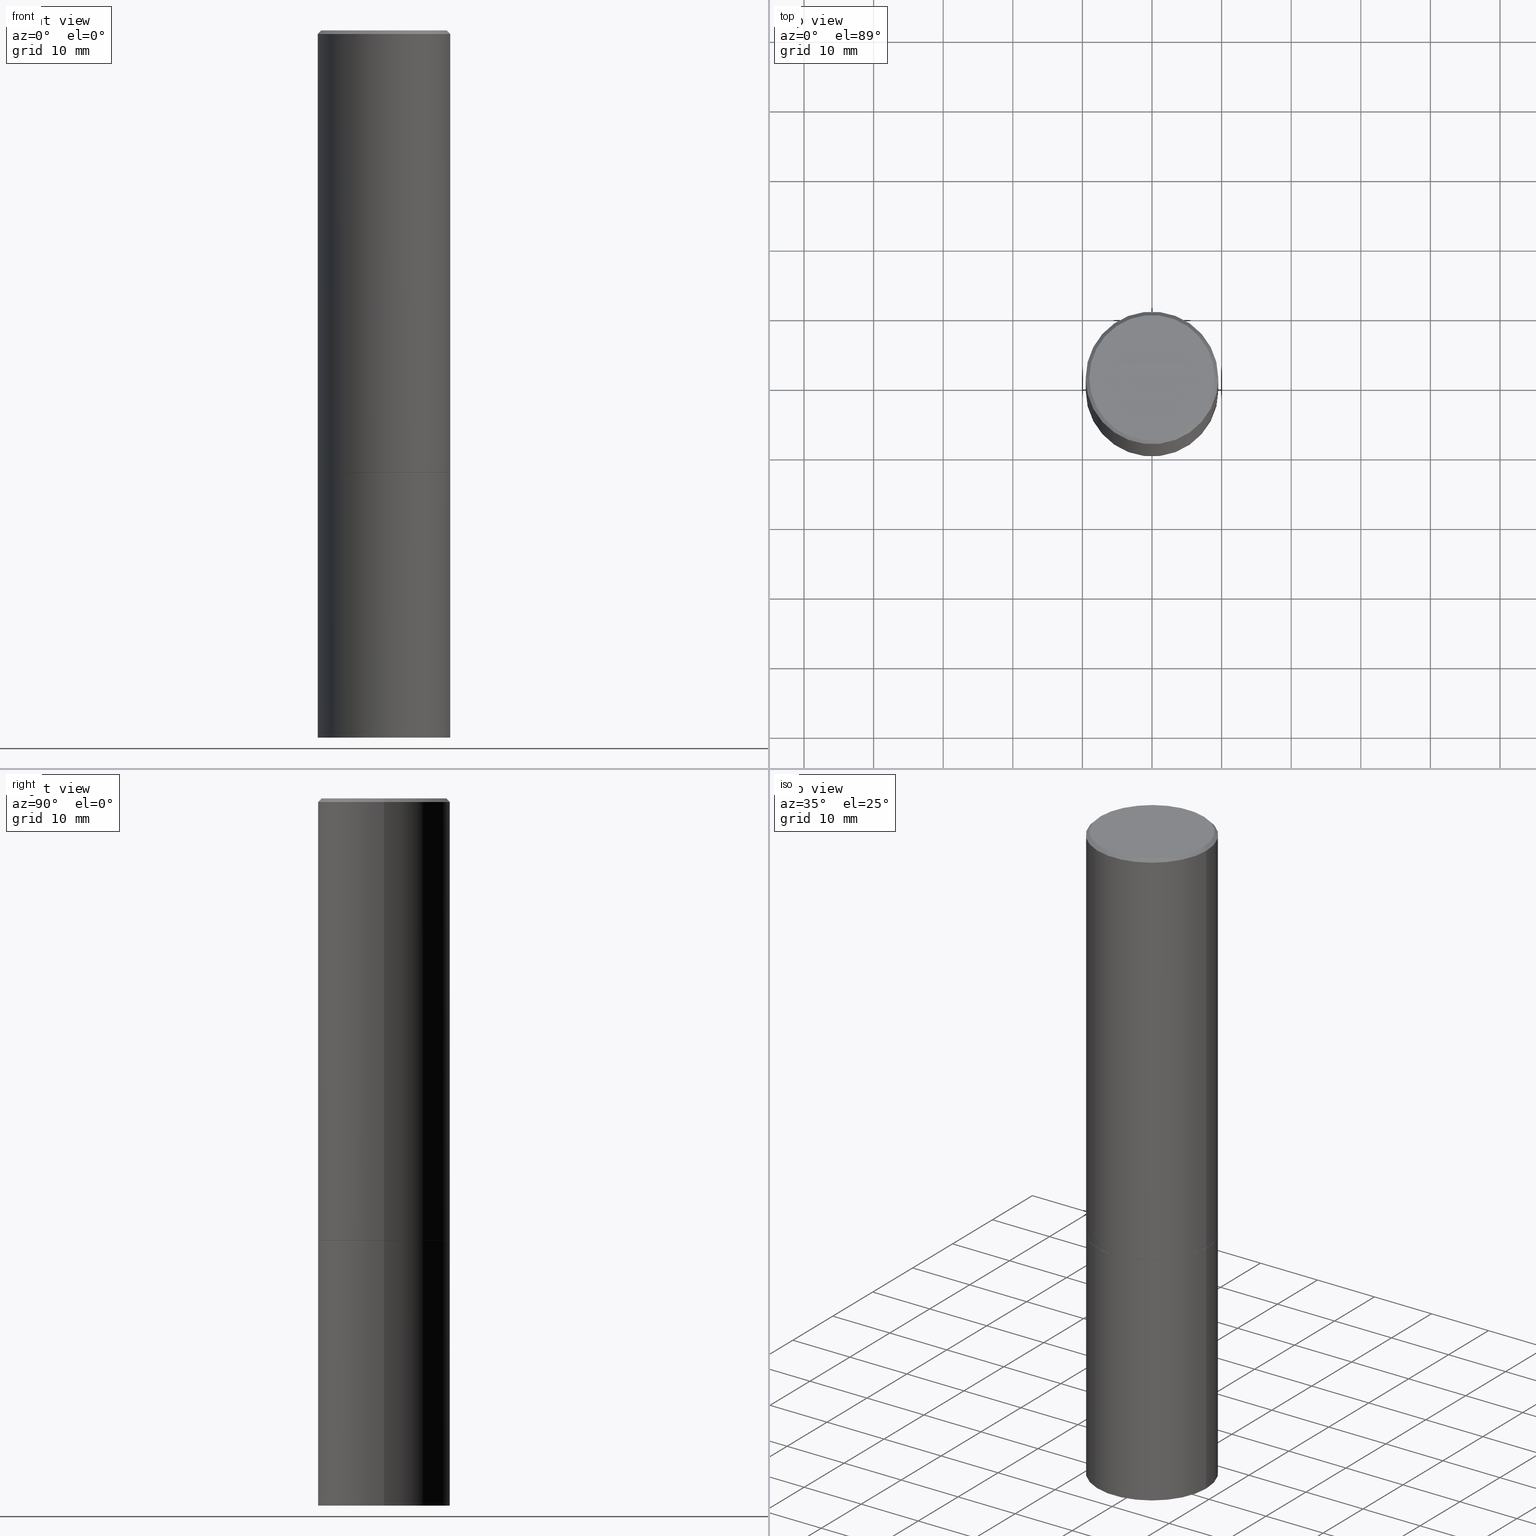
[diagram: canonical four-view strip — front | top / right | iso, engineering-drawing reading convention]
A machine part, canonical four-view strip (front | top / right | iso — engineering-drawing reading convention). The complete STEP part file that produces these views, byte-faithful:
ISO-10303-21;
HEADER;
FILE_DESCRIPTION (( 'STEP AP203' ),
    '1' );
FILE_NAME ('36537.STEP',
    '2024-02-27T19:36:53',
    ( '' ),
    ( '' ),
    'SwSTEP 2.0',
    'SolidWorks 2023',
    '' );
FILE_SCHEMA (( 'CONFIG_CONTROL_DESIGN' ));
ENDSEC;

DATA;
#1 = APPROVAL_ROLE ( '' ) ;
#2 = APPLICATION_PROTOCOL_DEFINITION ( 'international standard', 'config_control_design', 1994, #136 ) ;
#3 = CIRCLE ( 'NONE', #176, 0.3750000000000000555 ) ;
#4 = CARTESIAN_POINT ( 'NONE',  ( -0.3749999999999999445, -1.732985487172566723E-15, -2.499000000000000998 ) ) ;
#5 = PERSON_AND_ORGANIZATION_ROLE ( 'design_supplier' ) ;
#6 = ORIENTED_EDGE ( 'NONE', *, *, #203, .T. ) ;
#7 = DIRECTION ( 'NONE',  ( -2.445468806185136597E-29, 3.491481338843145583E-15, 1.000000000000000000 ) ) ;
#8 = ORIENTED_EDGE ( 'NONE', *, *, #340, .F. ) ;
#9 = EDGE_CURVE ( 'NONE', #67, #296, #132, .T. ) ;
#10 = ORIENTED_EDGE ( 'NONE', *, *, #171, .T. ) ;
#11 = CARTESIAN_POINT ( 'NONE',  ( 2.618611004132411153E-15, 0.3749999999999912847, -2.500000000000001332 ) ) ;
#12 = UNCERTAINTY_MEASURE_WITH_UNIT (LENGTH_MEASURE( 1.000000000000000082E-05 ), #361, 'distance_accuracy_value', 'NONE');
#13 = ORIENTED_EDGE ( 'NONE', *, *, #106, .F. ) ;
#14 = CARTESIAN_POINT ( 'NONE',  ( 0.3549999999999996492, -2.538996582575038287E-15, 4.268512490117958041E-18 ) ) ;
#15 = VECTOR ( 'NONE', #269, 39.37007874015748143 ) ;
#16 = EDGE_CURVE ( 'NONE', #89, #67, #142, .T. ) ;
#17 = CARTESIAN_POINT ( 'NONE',  ( 0.3750000000000000555, -2.618611004132350016E-15, 1.828566290923476203E-29 ) ) ;
#18 = DIRECTION ( 'NONE',  ( 1.000000000000000000, -6.982962677686268288E-15, 0.000000000000000000 ) ) ;
#19 = FACE_OUTER_BOUND ( 'NONE', #274, .T. ) ;
#20 = AXIS2_PLACEMENT_3D ( 'NONE', #259, #70, #155 ) ;
#21 = APPROVAL_PERSON_ORGANIZATION ( #307, #78, #1 ) ;
#22 = DIRECTION ( 'NONE',  ( -2.445468806185136597E-29, 3.491481338843145583E-15, 1.000000000000000000 ) ) ;
#23 = APPROVAL ( #208, 'UNSPECIFIED' ) ;
#24 = EDGE_LOOP ( 'NONE', ( #8, #355, #74, #41 ) ) ;
#25 = DESIGN_CONTEXT ( 'detailed design', #136, 'design' ) ;
#26 = ADVANCED_FACE ( 'NONE', ( #207 ), #279, .F. ) ;
#27 = AXIS2_PLACEMENT_3D ( 'NONE', #104, #159, #158 ) ;
#28 = DIRECTION ( 'NONE',  ( -2.445468806185136597E-29, 3.491481338843145583E-15, 1.000000000000000000 ) ) ;
#29 = CALENDAR_DATE ( 2024, 27, 2 ) ;
#30 = DIRECTION ( 'NONE',  ( 1.000000000000000000, -6.982962677686266711E-15, 0.000000000000000000 ) ) ;
#31 = PERSON_AND_ORGANIZATION ( #197, #348 ) ;
#32 = AXIS2_PLACEMENT_3D ( 'NONE', #140, #49, #365 ) ;
#33 = DIRECTION ( 'NONE',  ( -0.7071067811868130271, 7.493145998871311837E-15, 0.7071067811862817853 ) ) ;
#34 = DIRECTION ( 'NONE',  ( -2.445468806185136597E-29, 3.491481338843145583E-15, 1.000000000000000000 ) ) ;
#35 = EDGE_LOOP ( 'NONE', ( #262, #91 ) ) ;
#36 = VERTEX_POINT ( 'NONE', #204 ) ;
#37 = CIRCLE ( 'NONE', #226, 0.3750000000000000555 ) ;
#38 = VERTEX_POINT ( 'NONE', #202 ) ;
#39 = DIRECTION ( 'NONE',  ( -1.000000000000000000, 6.982962677686266711E-15, 0.000000000000000000 ) ) ;
#40 = ORIENTED_EDGE ( 'NONE', *, *, #329, .F. ) ;
#41 = ORIENTED_EDGE ( 'NONE', *, *, #59, .F. ) ;
#42 = ADVANCED_FACE ( 'NONE', ( #53 ), #169, .T. ) ;
#43 = DIRECTION ( 'NONE',  ( -2.445468806185136877E-29, 3.491481338843145188E-15, 1.000000000000000000 ) ) ;
#44 = APPROVAL_PERSON_ORGANIZATION ( #180, #23, #287 ) ;
#45 = MECHANICAL_CONTEXT ( 'NONE', #92, 'mechanical' ) ;
#46 = ORIENTED_EDGE ( 'NONE', *, *, #106, .T. ) ;
#47 = CARTESIAN_POINT ( 'NONE',  ( 6.113672015462842613E-29, -8.728703347107864943E-15, -2.500000000000000000 ) ) ;
#48 = CC_DESIGN_PERSON_AND_ORGANIZATION_ASSIGNMENT ( #145, #5, ( #266 ) ) ;
#49 = DIRECTION ( 'NONE',  ( -2.438088387897960049E-29, 3.491481338843145188E-15, 1.000000000000000000 ) ) ;
#50 = DIRECTION ( 'NONE',  ( -2.445468806185136597E-29, 3.491481338843145583E-15, 1.000000000000000000 ) ) ;
#51 = CARTESIAN_POINT ( 'NONE',  ( 6.113672015462842613E-29, -8.728703347107864943E-15, -2.500000000000000000 ) ) ;
#52 = EDGE_CURVE ( 'NONE', #36, #72, #3, .T. ) ;
#53 = FACE_OUTER_BOUND ( 'NONE', #247, .T. ) ;
#54 = PRODUCT_RELATED_PRODUCT_CATEGORY ( 'detail', '', ( #179 ) ) ;
#55 = AXIS2_PLACEMENT_3D ( 'NONE', #256, #34, #351 ) ;
#56 = SHAPE_DEFINITION_REPRESENTATION ( #90, #124 ) ;
#57 = CIRCLE ( 'NONE', #107, 0.3749999999999996669 ) ;
#58 = COORDINATED_UNIVERSAL_TIME_OFFSET ( 5, 0, .BEHIND. ) ;
#59 = EDGE_CURVE ( 'NONE', #264, #149, #61, .T. ) ;
#60 = APPROVAL_ROLE ( '' ) ;
#61 = CIRCLE ( 'NONE', #363, 0.3750000000000000555 ) ;
#62 = PLANE ( 'NONE',  #69 ) ;
#63 = LOCAL_TIME ( 14, 36, 53.00000000000000000, #255 ) ;
#64 = ORIENTED_EDGE ( 'NONE', *, *, #270, .F. ) ;
#65 = CALENDAR_DATE ( 2024, 27, 2 ) ;
#66 = DIRECTION ( 'NONE',  ( 2.438088387897960049E-29, -3.491481338843145188E-15, -1.000000000000000000 ) ) ;
#67 = VERTEX_POINT ( 'NONE', #4 ) ;
#68 = ORIENTED_EDGE ( 'NONE', *, *, #329, .T. ) ;
#69 = AXIS2_PLACEMENT_3D ( 'NONE', #11, #123, #120 ) ;
#70 = DIRECTION ( 'NONE',  ( -2.445468806185136597E-29, 3.491481338843145583E-15, 1.000000000000000000 ) ) ;
#71 = VECTOR ( 'NONE', #146, 39.37007874015748854 ) ;
#72 = VERTEX_POINT ( 'NONE', #253 ) ;
#73 = DIRECTION ( 'NONE',  ( -2.445468806185136597E-29, 3.491481338843145583E-15, 1.000000000000000000 ) ) ;
#74 = ORIENTED_EDGE ( 'NONE', *, *, #270, .T. ) ;
#75 = DIRECTION ( 'NONE',  ( -2.445468806185136597E-29, 3.491481338843145583E-15, 1.000000000000000000 ) ) ;
#76 = EDGE_CURVE ( 'NONE', #89, #189, #317, .T. ) ;
#77 = DIRECTION ( 'NONE',  ( 1.000000000000000000, -6.982962677686266711E-15, 0.000000000000000000 ) ) ;
#78 = APPROVAL ( #302, 'UNSPECIFIED' ) ;
#79 = DIRECTION ( 'NONE',  ( 1.000000000000000000, -6.982962677686266711E-15, 0.000000000000000000 ) ) ;
#80 = ADVANCED_FACE ( 'NONE', ( #276 ), #185, .T. ) ;
#81 = DIRECTION ( 'NONE',  ( -2.445468806185136597E-29, 3.491481338843145583E-15, 1.000000000000000000 ) ) ;
#82 = DATE_AND_TIME ( #345, #166 ) ;
#83 = CARTESIAN_POINT ( 'NONE',  ( 2.478951750578621842E-15, 0.3549999999999996492, -1.237341619044265047E-15 ) ) ;
#84 = AXIS2_PLACEMENT_3D ( 'NONE', #83, #147, #117 ) ;
#85 = DIRECTION ( 'NONE',  ( -2.445468806185136877E-29, 3.491481338843145188E-15, 1.000000000000000000 ) ) ;
#86 = PERSON_AND_ORGANIZATION ( #197, #348 ) ;
#87 = AXIS2_PLACEMENT_3D ( 'NONE', #311, #278, #217 ) ;
#88 = CC_DESIGN_SECURITY_CLASSIFICATION ( #112, ( #266 ) ) ;
#89 = VERTEX_POINT ( 'NONE', #94 ) ;
#90 = PRODUCT_DEFINITION_SHAPE ( 'NONE', 'NONE',  #134 ) ;
#91 = ORIENTED_EDGE ( 'NONE', *, *, #258, .F. ) ;
#92 = APPLICATION_CONTEXT ( 'configuration controlled 3d designs of mechanical parts and assemblies' ) ;
#93 = FACE_OUTER_BOUND ( 'NONE', #325, .T. ) ;
#94 = CARTESIAN_POINT ( 'NONE',  ( -0.3739999999999999991, -6.065975061016868641E-15, -2.500000000000000000 ) ) ;
#95 = ORIENTED_EDGE ( 'NONE', *, *, #9, .T. ) ;
#96 = DIRECTION ( 'NONE',  ( -1.000000000000000000, 6.982962677686265922E-15, -4.876176775795935793E-29 ) ) ;
#97 = AXIS2_PLACEMENT_3D ( 'NONE', #111, #28, #174 ) ;
#98 = CIRCLE ( 'NONE', #138, 0.3750000000000000555 ) ;
#99 = ORIENTED_EDGE ( 'NONE', *, *, #295, .T. ) ;
#100 = EDGE_CURVE ( 'NONE', #129, #215, #214, .T. ) ;
#101 = LINE ( 'NONE', #330, #152 ) ;
#102 = CARTESIAN_POINT ( 'NONE',  ( 0.000000000000000000, 0.000000000000000000, 0.000000000000000000 ) ) ;
#103 = ORIENTED_EDGE ( 'NONE', *, *, #265, .F. ) ;
#104 = CARTESIAN_POINT ( 'NONE',  ( 0.000000000000000000, 0.000000000000000000, 0.000000000000000000 ) ) ;
#105 = DIRECTION ( 'NONE',  ( 1.000000000000000000, -6.982962677686264344E-15, 0.000000000000000000 ) ) ;
#106 = EDGE_CURVE ( 'NONE', #338, #129, #352, .T. ) ;
#107 = AXIS2_PLACEMENT_3D ( 'NONE', #163, #139, #79 ) ;
#108 = CARTESIAN_POINT ( 'NONE',  ( 9.781875224740546387E-29, -1.396592535537258233E-14, -4.000000000000000000 ) ) ;
#109 = LINE ( 'NONE', #165, #15 ) ;
#110 = ADVANCED_FACE ( 'NONE', ( #19 ), #164, .F. ) ;
#111 = CARTESIAN_POINT ( 'NONE',  ( 0.000000000000000000, 0.000000000000000000, 0.000000000000000000 ) ) ;
#112 = SECURITY_CLASSIFICATION ( '', '', #229 ) ;
#113 = CARTESIAN_POINT ( 'NONE',  ( -0.3739999999999999991, -6.071273515365089465E-15, -2.500000000000000000 ) ) ;
#114 = CC_DESIGN_PERSON_AND_ORGANIZATION_ASSIGNMENT ( #86, #173, ( #266 ) ) ;
#115 = AXIS2_PLACEMENT_3D ( 'NONE', #292, #183, #39 ) ;
#116 = AXIS2_PLACEMENT_3D ( 'NONE', #364, #336, #223 ) ;
#117 = DIRECTION ( 'NONE',  ( -1.000000000000000000, 6.982962677686265922E-15, -4.876176775795935793E-29 ) ) ;
#118 = CALENDAR_DATE ( 2024, 27, 2 ) ;
#119 = ADVANCED_FACE ( 'NONE', ( #224 ), #238, .T. ) ;
#120 = DIRECTION ( 'NONE',  ( -1.000000000000000000, 6.982962677686265922E-15, -4.876176775795935793E-29 ) ) ;
#121 = EDGE_LOOP ( 'NONE', ( #240, #13, #10, #257 ) ) ;
#122 = AXIS2_PLACEMENT_3D ( 'NONE', #102, #75, #342 ) ;
#123 = DIRECTION ( 'NONE',  ( 2.438088387897960049E-29, -3.491481338843145188E-15, -1.000000000000000000 ) ) ;
#124 = ADVANCED_BREP_SHAPE_REPRESENTATION ( '36537', ( #308, #323, #27 ), #305 ) ;
#125 = ORIENTED_EDGE ( 'NONE', *, *, #316, .T. ) ;
#126 = DIRECTION ( 'NONE',  ( 1.000000000000000000, -6.982962677686266711E-15, 0.000000000000000000 ) ) ;
#127 = ORIENTED_EDGE ( 'NONE', *, *, #265, .T. ) ;
#128 = FACE_OUTER_BOUND ( 'NONE', #35, .T. ) ;
#129 = VERTEX_POINT ( 'NONE', #14 ) ;
#130 = ORIENTED_EDGE ( 'NONE', *, *, #300, .T. ) ;
#131 = LINE ( 'NONE', #17, #200 ) ;
#132 = LINE ( 'NONE', #299, #137 ) ;
#133 = CARTESIAN_POINT ( 'NONE',  ( 6.113672015462842613E-29, -8.728703347107864943E-15, -2.500000000000000000 ) ) ;
#134 = PRODUCT_DEFINITION ( 'UNKNOWN', '', #266, #25 ) ;
#135 = PERSON_AND_ORGANIZATION ( #197, #348 ) ;
#136 = APPLICATION_CONTEXT ( 'configuration controlled 3d designs of mechanical parts and assemblies' ) ;
#137 = VECTOR ( 'NONE', #85, 39.37007874015748143 ) ;
#138 = AXIS2_PLACEMENT_3D ( 'NONE', #108, #221, #77 ) ;
#139 = DIRECTION ( 'NONE',  ( -2.445468806185136597E-29, 3.491481338843145583E-15, 1.000000000000000000 ) ) ;
#140 = CARTESIAN_POINT ( 'NONE',  ( 6.113672015462842613E-29, -8.728703347107864943E-15, -2.500000000000000000 ) ) ;
#141 = ORIENTED_EDGE ( 'NONE', *, *, #52, .T. ) ;
#142 = LINE ( 'NONE', #113, #281 ) ;
#143 = CC_DESIGN_PERSON_AND_ORGANIZATION_ASSIGNMENT ( #193, #206, ( #134 ) ) ;
#144 = DIRECTION ( 'NONE',  ( 1.000000000000000000, -6.982962677686264344E-15, 0.000000000000000000 ) ) ;
#145 = PERSON_AND_ORGANIZATION ( #197, #348 ) ;
#146 = DIRECTION ( 'NONE',  ( 0.7071067811868130271, -2.468850131085038979E-15, 0.7071067811862817853 ) ) ;
#147 = DIRECTION ( 'NONE',  ( 2.438088387897960049E-29, -3.491481338843145188E-15, -1.000000000000000000 ) ) ;
#148 = ADVANCED_FACE ( 'NONE', ( #333 ), #358, .T. ) ;
#149 = VERTEX_POINT ( 'NONE', #172 ) ;
#150 = CARTESIAN_POINT ( 'NONE',  ( 0.000000000000000000, 0.000000000000000000, 0.000000000000000000 ) ) ;
#151 = EDGE_LOOP ( 'NONE', ( #212, #332, #235, #261 ) ) ;
#152 = VECTOR ( 'NONE', #43, 39.37007874015748143 ) ;
#153 = ORIENTED_EDGE ( 'NONE', *, *, #171, .F. ) ;
#154 = CARTESIAN_POINT ( 'NONE',  ( 0.3749999999999996669, -2.642516375941185662E-15, -0.02000000000000007674 ) ) ;
#155 = DIRECTION ( 'NONE',  ( 1.000000000000000000, -6.982962677686265922E-15, 4.876231632511992667E-29 ) ) ;
#156 = CC_DESIGN_DATE_AND_TIME_ASSIGNMENT ( #314, #349, ( #112 ) ) ;
#157 = ORIENTED_EDGE ( 'NONE', *, *, #203, .F. ) ;
#158 = DIRECTION ( 'NONE',  ( 1.000000000000000000, 0.000000000000000000, 0.000000000000000000 ) ) ;
#159 = DIRECTION ( 'NONE',  ( 0.000000000000000000, 0.000000000000000000, 1.000000000000000000 ) ) ;
#160 = AXIS2_PLACEMENT_3D ( 'NONE', #51, #250, #167 ) ;
#161 = LOCAL_TIME ( 14, 36, 53.00000000000000000, #324 ) ;
#162 = APPROVAL_STATUS ( 'not_yet_approved' ) ;
#163 = CARTESIAN_POINT ( 'NONE',  ( 4.890937612370292426E-31, -6.982962677686317493E-17, -0.02000000000000007674 ) ) ;
#164 = PLANE ( 'NONE',  #32 ) ;
#165 = CARTESIAN_POINT ( 'NONE',  ( 0.3749999999999998335, -2.618611004132348439E-15, 1.828566290923475082E-29 ) ) ;
#166 = LOCAL_TIME ( 14, 36, 53.00000000000000000, #227 ) ;
#167 = DIRECTION ( 'NONE',  ( 1.000000000000000000, -6.982962677686268288E-15, 0.000000000000000000 ) ) ;
#168 = CARTESIAN_POINT ( 'NONE',  ( 0.3739999999999999991, -1.134033138856252894E-14, -2.500000000000000000 ) ) ;
#169 = CYLINDRICAL_SURFACE ( 'NONE', #97, 0.3749999999999998335 ) ;
#170 = CIRCLE ( 'NONE', #304, 0.3749999999999996669 ) ;
#171 = EDGE_CURVE ( 'NONE', #338, #296, #344, .T. ) ;
#172 = CARTESIAN_POINT ( 'NONE',  ( 0.3750000000000000555, -1.134731435124021338E-14, -2.500000000000000000 ) ) ;
#173 = PERSON_AND_ORGANIZATION_ROLE ( 'creator' ) ;
#174 = DIRECTION ( 'NONE',  ( 1.000000000000000000, -6.982962677686265922E-15, 4.876176775795935793E-29 ) ) ;
#175 = CARTESIAN_POINT ( 'NONE',  ( 0.3739999999999999991, -1.134033138856252894E-14, -2.500000000000000000 ) ) ;
#176 = AXIS2_PLACEMENT_3D ( 'NONE', #225, #312, #30 ) ;
#177 = AXIS2_PLACEMENT_3D ( 'NONE', #231, #284, #211 ) ;
#178 = EDGE_LOOP ( 'NONE', ( #130, #326 ) ) ;
#179 = PRODUCT ( '36537', '36537', '', ( #45 ) ) ;
#180 = PERSON_AND_ORGANIZATION ( #197, #348 ) ;
#181 = FACE_OUTER_BOUND ( 'NONE', #237, .T. ) ;
#182 = ORIENTED_EDGE ( 'NONE', *, *, #199, .F. ) ;
#183 = DIRECTION ( 'NONE',  ( 2.445468806185136597E-29, -3.491481338843145583E-15, -1.000000000000000000 ) ) ;
#184 = ORIENTED_EDGE ( 'NONE', *, *, #16, .T. ) ;
#185 = CONICAL_SURFACE ( 'NONE', #87, 0.3749999999999996669, 0.7853981633974477239 ) ;
#186 = CC_DESIGN_DATE_AND_TIME_ASSIGNMENT ( #334, #201, ( #134 ) ) ;
#187 = APPROVAL_PERSON_ORGANIZATION ( #31, #213, #60 ) ;
#188 =( LENGTH_UNIT ( ) NAMED_UNIT ( * ) SI_UNIT ( $, .METRE. ) );
#189 = VERTEX_POINT ( 'NONE', #168 ) ;
#190 = LENGTH_MEASURE_WITH_UNIT ( LENGTH_MEASURE( 0.02539999999999999897 ), #188 );
#191 = ORIENTED_EDGE ( 'NONE', *, *, #76, .F. ) ;
#192 = CARTESIAN_POINT ( 'NONE',  ( 6.111226546656659252E-29, -8.725211865769023513E-15, -2.499000000000000998 ) ) ;
#193 = PERSON_AND_ORGANIZATION ( #197, #348 ) ;
#194 = VECTOR ( 'NONE', #230, 39.37007874015748143 ) ;
#195 = CLOSED_SHELL ( 'NONE', ( #148, #234, #220, #248 ) ) ;
#196 = CARTESIAN_POINT ( 'NONE',  ( -0.3750000000000000555, -8.682779092139847151E-15, -2.500000000000000000 ) ) ;
#197 = PERSON ( 'UNSPECIFIED', 'UNSPECIFIED', 'UNSPECIFIED', ('UNSPECIFIED'), ('UNSPECIFIED'), ('UNSPECIFIED') ) ;
#198 = FACE_OUTER_BOUND ( 'NONE', #151, .T. ) ;
#199 = EDGE_CURVE ( 'NONE', #296, #215, #170, .T. ) ;
#200 = VECTOR ( 'NONE', #271, 39.37007874015748143 ) ;
#201 = DATE_TIME_ROLE ( 'creation_date' ) ;
#202 = CARTESIAN_POINT ( 'NONE',  ( 0.3750000000000000555, -1.134382286990137353E-14, -2.499000000000000998 ) ) ;
#203 = EDGE_CURVE ( 'NONE', #129, #338, #222, .T. ) ;
#204 = CARTESIAN_POINT ( 'NONE',  ( 0.3750000000000000555, -1.658453635950493392E-14, -4.000000000000000000 ) ) ;
#205 = CIRCLE ( 'NONE', #318, 0.3750000000000000555 ) ;
#206 = PERSON_AND_ORGANIZATION_ROLE ( 'creator' ) ;
#207 = FACE_OUTER_BOUND ( 'NONE', #354, .T. ) ;
#208 = APPROVAL_STATUS ( 'not_yet_approved' ) ;
#209 = ADVANCED_FACE ( 'NONE', ( #93 ), #272, .T. ) ;
#210 = LOCAL_TIME ( 14, 36, 53.00000000000000000, #303 ) ;
#211 = DIRECTION ( 'NONE',  ( 1.000000000000000000, -6.982962677686265922E-15, 4.876176775795935793E-29 ) ) ;
#212 = ORIENTED_EDGE ( 'NONE', *, *, #16, .F. ) ;
#213 = APPROVAL ( #162, 'UNSPECIFIED' ) ;
#214 = LINE ( 'NONE', #331, #298 ) ;
#215 = VERTEX_POINT ( 'NONE', #154 ) ;
#216 = LINE ( 'NONE', #175, #71 ) ;
#217 = DIRECTION ( 'NONE',  ( -1.000000000000000000, 6.982962677686266711E-15, 0.000000000000000000 ) ) ;
#218 = EDGE_LOOP ( 'NONE', ( #127, #184, #359, #291 ) ) ;
#219 = DIRECTION ( 'NONE',  ( 1.000000000000000000, -6.982962677686264344E-15, 0.000000000000000000 ) ) ;
#220 = ADVANCED_FACE ( 'NONE', ( #321 ), #62, .F. ) ;
#221 = DIRECTION ( 'NONE',  ( -2.445468806185136597E-29, 3.491481338843145583E-15, 1.000000000000000000 ) ) ;
#222 = CIRCLE ( 'NONE', #55, 0.3549999999999996492 ) ;
#223 = DIRECTION ( 'NONE',  ( 1.000000000000000000, -6.982962677686268288E-15, 0.000000000000000000 ) ) ;
#224 = FACE_OUTER_BOUND ( 'NONE', #218, .T. ) ;
#225 = CARTESIAN_POINT ( 'NONE',  ( 9.781875224740546387E-29, -1.396592535537258233E-14, -4.000000000000000000 ) ) ;
#226 = AXIS2_PLACEMENT_3D ( 'NONE', #192, #246, #105 ) ;
#227 = COORDINATED_UNIVERSAL_TIME_OFFSET ( 5, 0, .BEHIND. ) ;
#228 = CC_DESIGN_APPROVAL ( #78, ( #266 ) ) ;
#229 = SECURITY_CLASSIFICATION_LEVEL ( 'unclassified' ) ;
#230 = DIRECTION ( 'NONE',  ( -0.7071067811865471286, 2.468850131082252722E-15, -0.7071067811865479058 ) ) ;
#231 = CARTESIAN_POINT ( 'NONE',  ( 0.000000000000000000, 0.000000000000000000, 0.000000000000000000 ) ) ;
#232 = ORIENTED_EDGE ( 'NONE', *, *, #100, .T. ) ;
#233 = CIRCLE ( 'NONE', #273, 0.3750000000000000555 ) ;
#234 = ADVANCED_FACE ( 'NONE', ( #128 ), #236, .T. ) ;
#235 = ORIENTED_EDGE ( 'NONE', *, *, #245, .T. ) ;
#236 = PLANE ( 'NONE',  #327 ) ;
#237 = EDGE_LOOP ( 'NONE', ( #366, #95, #289, #40 ) ) ;
#238 = CONICAL_SURFACE ( 'NONE', #346, 0.3739999999999999991, 0.7853981633978239785 ) ;
#239 = DIMENSIONAL_EXPONENTS ( 1.000000000000000000, 0.000000000000000000, 0.000000000000000000, 0.000000000000000000, 0.000000000000000000, 0.000000000000000000, 0.000000000000000000 ) ;
#240 = ORIENTED_EDGE ( 'NONE', *, *, #100, .F. ) ;
#241 = DIRECTION ( 'NONE',  ( -2.445468806185136597E-29, 3.491481338843145583E-15, 1.000000000000000000 ) ) ;
#242 = DIRECTION ( 'NONE',  ( 1.000000000000000000, -6.982962677686265922E-15, 4.876176775795935793E-29 ) ) ;
#243 = PERSON_AND_ORGANIZATION_ROLE ( 'design_owner' ) ;
#244 = AXIS2_PLACEMENT_3D ( 'NONE', #150, #7, #242 ) ;
#245 = EDGE_CURVE ( 'NONE', #189, #38, #216, .T. ) ;
#246 = DIRECTION ( 'NONE',  ( -2.445468806185136597E-29, 3.491481338843145583E-15, 1.000000000000000000 ) ) ;
#247 = EDGE_LOOP ( 'NONE', ( #293, #99, #68, #182 ) ) ;
#248 = ADVANCED_FACE ( 'NONE', ( #350 ), #315, .T. ) ;
#249 = CC_DESIGN_APPROVAL ( #23, ( #112 ) ) ;
#250 = DIRECTION ( 'NONE',  ( -2.445468806185136597E-29, 3.491481338843145583E-15, 1.000000000000000000 ) ) ;
#251 = CARTESIAN_POINT ( 'NONE',  ( -0.3749999999999996669, 2.548781377355484352E-15, -0.02000000000000007674 ) ) ;
#252 = DATE_AND_TIME ( #362, #161 ) ;
#253 = CARTESIAN_POINT ( 'NONE',  ( -0.3750000000000000555, -8.682779092139847151E-15, -4.000000000000000000 ) ) ;
#254 = ADVANCED_FACE ( 'NONE', ( #181 ), #288, .T. ) ;
#255 = COORDINATED_UNIVERSAL_TIME_OFFSET ( 5, 0, .BEHIND. ) ;
#256 = CARTESIAN_POINT ( 'NONE',  ( -1.043851414335219820E-46, 1.490343170380447200E-32, 4.268512490100411279E-18 ) ) ;
#257 = ORIENTED_EDGE ( 'NONE', *, *, #199, .T. ) ;
#258 = EDGE_CURVE ( 'NONE', #72, #36, #98, .T. ) ;
#259 = CARTESIAN_POINT ( 'NONE',  ( -1.043851414335219820E-46, 1.490343170380447200E-32, 4.268512490100411279E-18 ) ) ;
#260 = EDGE_LOOP ( 'NONE', ( #141, #319, #322, #64 ) ) ;
#261 = ORIENTED_EDGE ( 'NONE', *, *, #295, .F. ) ;
#262 = ORIENTED_EDGE ( 'NONE', *, *, #52, .F. ) ;
#263 = DIRECTION ( 'NONE',  ( 1.000000000000000000, -6.982962677686268288E-15, 0.000000000000000000 ) ) ;
#264 = VERTEX_POINT ( 'NONE', #196 ) ;
#265 = EDGE_CURVE ( 'NONE', #189, #89, #310, .T. ) ;
#266 = PRODUCT_DEFINITION_FORMATION_WITH_SPECIFIED_SOURCE ( 'ANY', '', #179, .NOT_KNOWN. ) ;
#267 = CARTESIAN_POINT ( 'NONE',  ( 6.111226546656659252E-29, -8.725211865769023513E-15, -2.499000000000000998 ) ) ;
#268 =( NAMED_UNIT ( * ) PLANE_ANGLE_UNIT ( ) SI_UNIT ( $, .RADIAN. ) );
#269 = DIRECTION ( 'NONE',  ( -2.445468806185136877E-29, 3.491481338843145188E-15, 1.000000000000000000 ) ) ;
#270 = EDGE_CURVE ( 'NONE', #36, #149, #131, .T. ) ;
#271 = DIRECTION ( 'NONE',  ( -2.445468806185136877E-29, 3.491481338843145188E-15, 1.000000000000000000 ) ) ;
#272 = CONICAL_SURFACE ( 'NONE', #115, 0.3749999999999996669, 0.7853981633974477239 ) ;
#273 = AXIS2_PLACEMENT_3D ( 'NONE', #133, #22, #335 ) ;
#274 = EDGE_LOOP ( 'NONE', ( #103, #191 ) ) ;
#275 = ADVANCED_FACE ( 'NONE', ( #198 ), #341, .T. ) ;
#276 = FACE_OUTER_BOUND ( 'NONE', #121, .T. ) ;
#277 = CARTESIAN_POINT ( 'NONE',  ( 4.890937612370292426E-31, -6.982962677686317493E-17, -0.02000000000000007674 ) ) ;
#278 = DIRECTION ( 'NONE',  ( 2.445468806185136597E-29, -3.491481338843145583E-15, -1.000000000000000000 ) ) ;
#279 = PLANE ( 'NONE',  #84 ) ;
#280 = APPROVAL_DATE_TIME ( #313, #78 ) ;
#281 = VECTOR ( 'NONE', #33, 39.37007874015748854 ) ;
#282 = CC_DESIGN_APPROVAL ( #213, ( #134 ) ) ;
#283 = PERSON_AND_ORGANIZATION ( #197, #348 ) ;
#284 = DIRECTION ( 'NONE',  ( -2.445468806185136597E-29, 3.491481338843145583E-15, 1.000000000000000000 ) ) ;
#285 = DIRECTION ( 'NONE',  ( 0.7071067811865471286, -7.319954787623254468E-15, -0.7071067811865479058 ) ) ;
#286 = CC_DESIGN_PERSON_AND_ORGANIZATION_ASSIGNMENT ( #135, #243, ( #179 ) ) ;
#287 = APPROVAL_ROLE ( '' ) ;
#288 = CYLINDRICAL_SURFACE ( 'NONE', #244, 0.3749999999999998335 ) ;
#289 = ORIENTED_EDGE ( 'NONE', *, *, #316, .F. ) ;
#290 = APPROVAL_DATE_TIME ( #252, #213 ) ;
#291 = ORIENTED_EDGE ( 'NONE', *, *, #245, .F. ) ;
#292 = CARTESIAN_POINT ( 'NONE',  ( 4.890937612370292426E-31, -6.982962677686317493E-17, -0.02000000000000007674 ) ) ;
#293 = ORIENTED_EDGE ( 'NONE', *, *, #9, .F. ) ;
#294 =( NAMED_UNIT ( * ) SI_UNIT ( $, .STERADIAN. ) SOLID_ANGLE_UNIT ( ) );
#295 = EDGE_CURVE ( 'NONE', #67, #38, #205, .T. ) ;
#296 = VERTEX_POINT ( 'NONE', #337 ) ;
#297 = APPLICATION_PROTOCOL_DEFINITION ( 'international standard', 'config_control_design', 1994, #92 ) ;
#298 = VECTOR ( 'NONE', #285, 39.37007874015748143 ) ;
#299 = CARTESIAN_POINT ( 'NONE',  ( -0.3749999999999998335, 2.664535259100374514E-15, -1.844600658845588757E-29 ) ) ;
#300 = EDGE_CURVE ( 'NONE', #149, #264, #233, .T. ) ;
#301 = CARTESIAN_POINT ( 'NONE',  ( -0.3549999999999996492, 2.513866563967053097E-15, 4.268512490082953109E-18 ) ) ;
#302 = APPROVAL_STATUS ( 'not_yet_approved' ) ;
#303 = COORDINATED_UNIVERSAL_TIME_OFFSET ( 5, 0, .BEHIND. ) ;
#304 = AXIS2_PLACEMENT_3D ( 'NONE', #277, #347, #126 ) ;
#305 =( GEOMETRIC_REPRESENTATION_CONTEXT ( 3 ) GLOBAL_UNCERTAINTY_ASSIGNED_CONTEXT ( ( #12 ) ) GLOBAL_UNIT_ASSIGNED_CONTEXT ( ( #361, #268, #294 ) ) REPRESENTATION_CONTEXT ( 'NONE', 'WORKASPACE' ) );
#306 = CARTESIAN_POINT ( 'NONE',  ( 6.113672015462842613E-29, -8.728703347107864943E-15, -2.500000000000000000 ) ) ;
#307 = PERSON_AND_ORGANIZATION ( #197, #348 ) ;
#308 = MANIFOLD_SOLID_BREP ( 'Body-Move/Copy2[1]', #195 ) ;
#309 = APPROVAL_DATE_TIME ( #82, #23 ) ;
#310 = CIRCLE ( 'NONE', #353, 0.3739999999999999991 ) ;
#311 = CARTESIAN_POINT ( 'NONE',  ( 4.890937612370292426E-31, -6.982962677686317493E-17, -0.02000000000000007674 ) ) ;
#312 = DIRECTION ( 'NONE',  ( -2.445468806185136597E-29, 3.491481338843145583E-15, 1.000000000000000000 ) ) ;
#313 = DATE_AND_TIME ( #118, #63 ) ;
#314 = DATE_AND_TIME ( #65, #328 ) ;
#315 = CYLINDRICAL_SURFACE ( 'NONE', #177, 0.3750000000000000555 ) ;
#316 = EDGE_CURVE ( 'NONE', #215, #296, #57, .T. ) ;
#317 = CIRCLE ( 'NONE', #160, 0.3739999999999999991 ) ;
#318 = AXIS2_PLACEMENT_3D ( 'NONE', #267, #241, #219 ) ;
#319 = ORIENTED_EDGE ( 'NONE', *, *, #340, .T. ) ;
#320 = PERSON_AND_ORGANIZATION_ROLE ( 'classification_officer' ) ;
#321 = FACE_OUTER_BOUND ( 'NONE', #178, .T. ) ;
#322 = ORIENTED_EDGE ( 'NONE', *, *, #300, .F. ) ;
#323 = MANIFOLD_SOLID_BREP ( 'Body-Move/Copy2[2]', #339 ) ;
#324 = COORDINATED_UNIVERSAL_TIME_OFFSET ( 5, 0, .BEHIND. ) ;
#325 = EDGE_LOOP ( 'NONE', ( #157, #232, #125, #153 ) ) ;
#326 = ORIENTED_EDGE ( 'NONE', *, *, #59, .T. ) ;
#327 = AXIS2_PLACEMENT_3D ( 'NONE', #357, #66, #96 ) ;
#328 = LOCAL_TIME ( 14, 36, 53.00000000000000000, #58 ) ;
#329 = EDGE_CURVE ( 'NONE', #38, #215, #109, .T. ) ;
#330 = CARTESIAN_POINT ( 'NONE',  ( -0.3750000000000000555, 2.664535259100376091E-15, -1.844600658845589598E-29 ) ) ;
#331 = CARTESIAN_POINT ( 'NONE',  ( 0.3749999999999996669, -2.642516375941185662E-15, -0.02000000000000007674 ) ) ;
#332 = ORIENTED_EDGE ( 'NONE', *, *, #76, .T. ) ;
#333 = FACE_OUTER_BOUND ( 'NONE', #260, .T. ) ;
#334 = DATE_AND_TIME ( #29, #210 ) ;
#335 = DIRECTION ( 'NONE',  ( 1.000000000000000000, -6.982962677686264344E-15, 0.000000000000000000 ) ) ;
#336 = DIRECTION ( 'NONE',  ( -2.445468806185136597E-29, 3.491481338843145583E-15, 1.000000000000000000 ) ) ;
#337 = CARTESIAN_POINT ( 'NONE',  ( -0.3749999999999996669, 2.548781377355484352E-15, -0.02000000000000007674 ) ) ;
#338 = VERTEX_POINT ( 'NONE', #301 ) ;
#339 = CLOSED_SHELL ( 'NONE', ( #119, #254, #209, #80, #42, #275, #110, #26 ) ) ;
#340 = EDGE_CURVE ( 'NONE', #72, #264, #101, .T. ) ;
#341 = CONICAL_SURFACE ( 'NONE', #116, 0.3739999999999999991, 0.7853981633978239785 ) ;
#342 = DIRECTION ( 'NONE',  ( 1.000000000000000000, -6.982962677686265922E-15, 4.876176775795935793E-29 ) ) ;
#343 = CARTESIAN_POINT ( 'NONE',  ( 6.113672015462842613E-29, -8.728703347107864943E-15, -2.500000000000000000 ) ) ;
#344 = LINE ( 'NONE', #251, #194 ) ;
#345 = CALENDAR_DATE ( 2024, 27, 2 ) ;
#346 = AXIS2_PLACEMENT_3D ( 'NONE', #306, #50, #263 ) ;
#347 = DIRECTION ( 'NONE',  ( -2.445468806185136597E-29, 3.491481338843145583E-15, 1.000000000000000000 ) ) ;
#348 = ORGANIZATION ( 'UNSPECIFIED', 'UNSPECIFIED', '' ) ;
#349 = DATE_TIME_ROLE ( 'classification_date' ) ;
#350 = FACE_OUTER_BOUND ( 'NONE', #24, .T. ) ;
#351 = DIRECTION ( 'NONE',  ( 1.000000000000000000, -6.982962677686265922E-15, 4.876231632511992667E-29 ) ) ;
#352 = CIRCLE ( 'NONE', #20, 0.3549999999999996492 ) ;
#353 = AXIS2_PLACEMENT_3D ( 'NONE', #47, #73, #18 ) ;
#354 = EDGE_LOOP ( 'NONE', ( #46, #6 ) ) ;
#355 = ORIENTED_EDGE ( 'NONE', *, *, #258, .T. ) ;
#356 = CC_DESIGN_PERSON_AND_ORGANIZATION_ASSIGNMENT ( #283, #320, ( #112 ) ) ;
#357 = CARTESIAN_POINT ( 'NONE',  ( 2.618611004132448230E-15, 0.3749999999999861222, -4.000000000000000888 ) ) ;
#358 = CYLINDRICAL_SURFACE ( 'NONE', #122, 0.3750000000000000555 ) ;
#359 = ORIENTED_EDGE ( 'NONE', *, *, #360, .F. ) ;
#360 = EDGE_CURVE ( 'NONE', #38, #67, #37, .T. ) ;
#361 =( CONVERSION_BASED_UNIT ( 'INCH', #190 ) LENGTH_UNIT ( ) NAMED_UNIT ( #239 ) );
#362 = CALENDAR_DATE ( 2024, 27, 2 ) ;
#363 = AXIS2_PLACEMENT_3D ( 'NONE', #343, #81, #144 ) ;
#364 = CARTESIAN_POINT ( 'NONE',  ( 6.113672015462842613E-29, -8.728703347107864943E-15, -2.500000000000000000 ) ) ;
#365 = DIRECTION ( 'NONE',  ( 1.000000000000000000, -6.982962677686265922E-15, 4.876176775795935793E-29 ) ) ;
#366 = ORIENTED_EDGE ( 'NONE', *, *, #360, .T. ) ;
ENDSEC;
END-ISO-10303-21;
